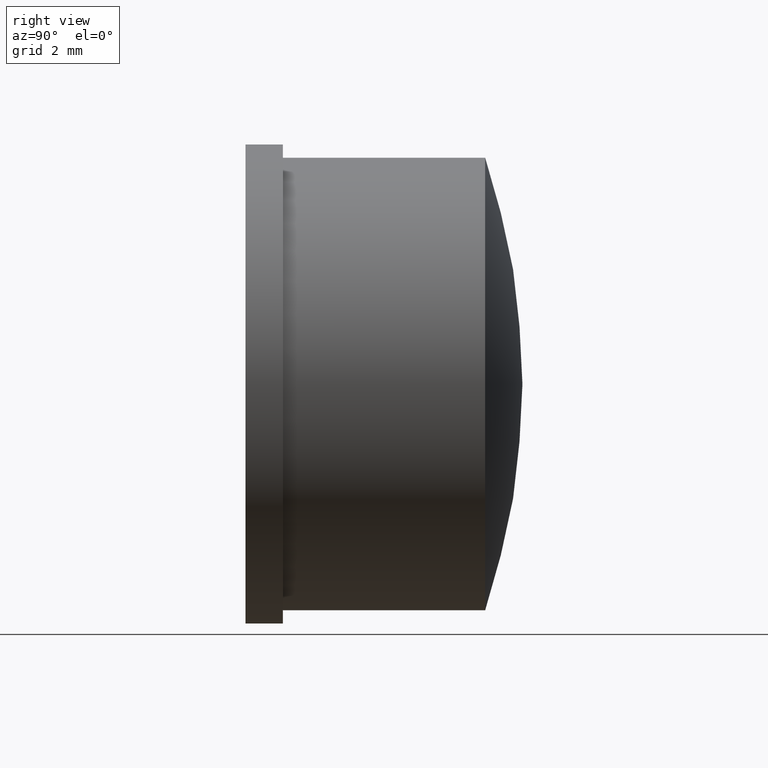
[diagram: clean part render]
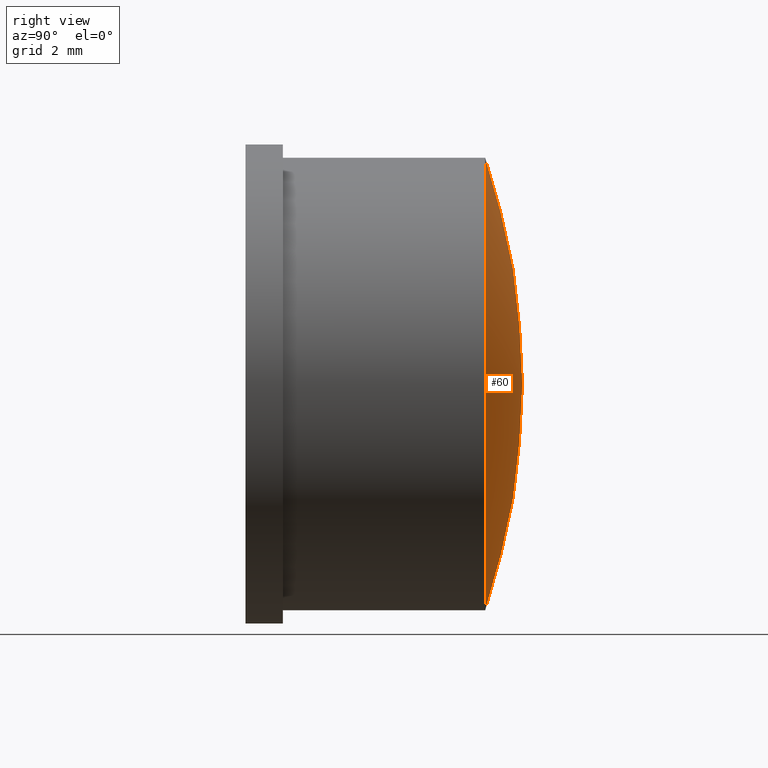
[diagram: same view with one face highlighted and labeled with its STEP entity id]
A machine part, right view. The second image highlights one B-rep face of the part: STEP entity #60.
In plain terms, the highlighted spherical surface has radius 13.2518 mm.
Its self-contained STEP definition (entity closure, byte-faithful):
#15=SPHERICAL_SURFACE('',#71,13.2517857142857);
#25=FACE_OUTER_BOUND('',#33,.T.);
#33=EDGE_LOOP('',(#53));
#34=CIRCLE('',#64,4.25);
#38=VERTEX_POINT('',#94);
#42=EDGE_CURVE('',#38,#38,#34,.T.);
#53=ORIENTED_EDGE('',*,*,#42,.T.);
#60=ADVANCED_FACE('',(#25),#15,.T.);
#64=AXIS2_PLACEMENT_3D('',#95,#76,#77);
#71=AXIS2_PLACEMENT_3D('',#105,#90,#91);
#76=DIRECTION('center_axis',(-2.94285525206709E-17,1.,0.));
#77=DIRECTION('ref_axis',(-1.,0.,0.));
#90=DIRECTION('center_axis',(6.12323399573676E-17,0.,1.));
#91=DIRECTION('ref_axis',(1.,0.,0.));
#94=CARTESIAN_POINT('',(-4.25,3.8,0.));
#95=CARTESIAN_POINT('Origin',(-1.32428486343019E-16,3.8,0.));
#105=CARTESIAN_POINT('Origin',(2.15105711021124E-15,-8.75178571428571,0.));